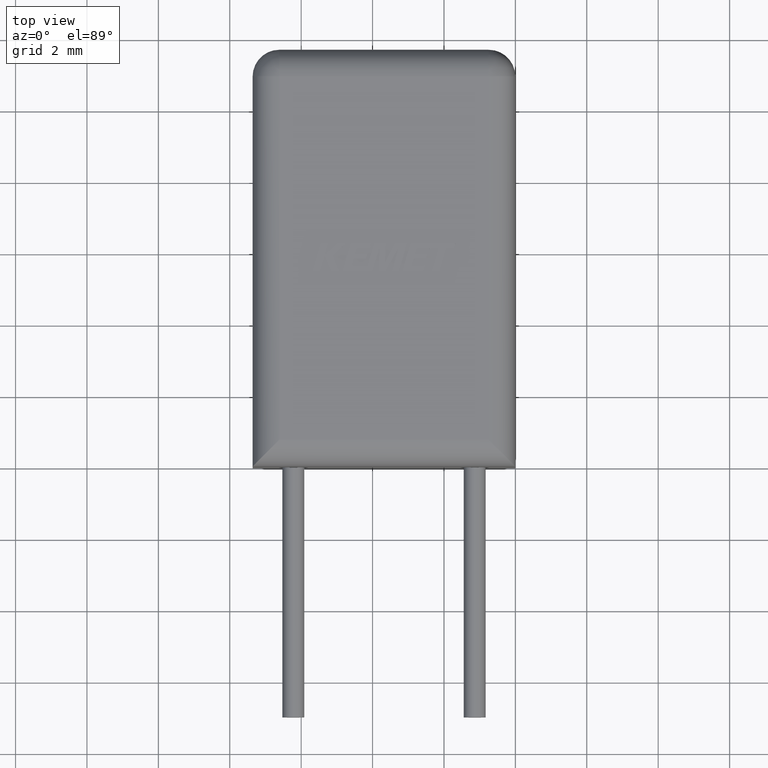
[diagram: clean part render]
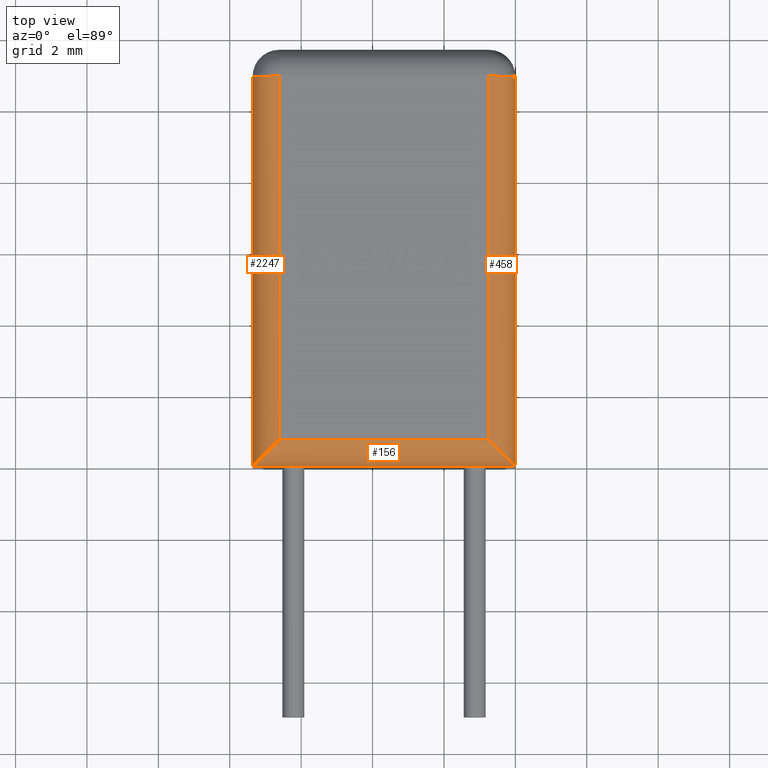
[diagram: same view with one multi-face feature highlighted, each face labeled with its STEP entity id]
A machine part, top view. The highlighted faces form ONE feature: a constant-radius fillet chain: 3 tangent blend faces with common blend radius 0.75 mm. The faces share edges in the B-rep.
Their STEP definitions:
[1] entity #156 (Cylinder):
#20 = EDGE_CURVE ( 'NONE', #2155, #1431, #1561, .T. ) ;
#66 = DIRECTION ( 'NONE',  ( -1.224646799147353200E-016, 1.000000000000000000, 0.0000000000000000000 ) ) ;
#101 = DIRECTION ( 'NONE',  ( 1.000000000000000000, 1.224646799147353200E-016, 0.0000000000000000000 ) ) ;
#132 = CARTESIAN_POINT ( 'NONE',  ( -6.610000000000000300, 0.7499999999999992200, 4.070000000000000300 ) ) ;
#156 = ADVANCED_FACE ( 'NONE', ( #924 ), #227, .T. ) ;
#171 = CARTESIAN_POINT ( 'NONE',  ( 0.0000000000000000000, 0.0000000000000000000, 3.320000000000000700 ) ) ;
#192 = CARTESIAN_POINT ( 'NONE',  ( -9.184850993605149700E-017, 0.7500000000000000000, 4.070000000000000300 ) ) ;
#227 = CYLINDRICAL_SURFACE ( 'NONE', #1814, 0.7500000000000000000 ) ;
#537 = EDGE_CURVE ( 'NONE', #1845, #1150, #1416, .T. ) ;
#840 = CARTESIAN_POINT ( 'NONE',  ( -7.049339828220179300, 0.3106601717798205800, 4.070000000000000300 ) ) ;
#924 = FACE_OUTER_BOUND ( 'NONE', #1584, .T. ) ;
#1079 = CARTESIAN_POINT ( 'NONE',  ( 5.380361143677898200E-017, -5.380361143677898200E-017, 3.759339828220179300 ) ) ;
#1150 = VERTEX_POINT ( 'NONE', #3003 ) ;
#1416 = LINE ( 'NONE', #192, #1641 ) ;
#1431 = VERTEX_POINT ( 'NONE', #2835 ) ;
#1544 = CARTESIAN_POINT ( 'NONE',  ( -9.184850993605149700E-017, 0.7500000000000000000, 3.320000000000000700 ) ) ;
#1561 = LINE ( 'NONE', #2631, #2936 ) ;
#1584 = EDGE_LOOP ( 'NONE', ( #2550, #2567, #3412, #2418 ) ) ;
#1594 = CARTESIAN_POINT ( 'NONE',  ( 0.0000000000000000000, 0.0000000000000000000, 3.320000000000000700 ) ) ;
#1609 = DIRECTION ( 'NONE',  ( 1.000000000000000000, 1.224646799147353200E-016, 0.0000000000000000000 ) ) ;
#1641 = VECTOR ( 'NONE', #1609, 1000.000000000000000 ) ;
#1814 = AXIS2_PLACEMENT_3D ( 'NONE', #1544, #101, #66 ) ;
#1845 = VERTEX_POINT ( 'NONE', #132 ) ;
#1944 = CARTESIAN_POINT ( 'NONE',  ( -6.610000000000000300, 0.7499999999999992200, 4.070000000000000300 ) ) ;
#2049 = DIRECTION ( 'NONE',  ( -1.000000000000000000, -1.224646799147353200E-016, -0.0000000000000000000 ) ) ;
#2155 = VERTEX_POINT ( 'NONE', #1594 ) ;
#2389 = EDGE_CURVE ( 'NONE', #1845, #1431, #3700, .T. ) ;
#2418 = ORIENTED_EDGE ( 'NONE', *, *, #537, .F. ) ;
#2550 = ORIENTED_EDGE ( 'NONE', *, *, #2389, .T. ) ;
#2567 = ORIENTED_EDGE ( 'NONE', *, *, #20, .F. ) ;
#2631 = CARTESIAN_POINT ( 'NONE',  ( 0.0000000000000000000, 0.0000000000000000000, 3.320000000000000700 ) ) ;
#2835 = CARTESIAN_POINT ( 'NONE',  ( -7.360000000000000300, -9.013400441724519400E-016, 3.320000000000000700 ) ) ;
#2936 = VECTOR ( 'NONE', #2049, 1000.000000000000000 ) ;
#3003 = CARTESIAN_POINT ( 'NONE',  ( -0.7500000000000000000, 0.7499999999999998900, 4.070000000000000300 ) ) ;
#3096 = CARTESIAN_POINT ( 'NONE',  ( -7.360000000000000300, -8.673617379884035500E-016, 3.759339828220179300 ) ) ;
#3104 = CARTESIAN_POINT ( 'NONE',  ( -7.360000000000000300, -9.013400441724519400E-016, 3.320000000000000700 ) ) ;
#3124 =( BOUNDED_CURVE ( )  B_SPLINE_CURVE ( 3, ( #171, #1079, #3698, #3396 ),
 .UNSPECIFIED., .F., .T. ) 
 B_SPLINE_CURVE_WITH_KNOTS ( ( 4, 4 ),
 ( 3.141592653589793100, 4.712388980384689700 ),
 .UNSPECIFIED. ) 
 CURVE ( )  GEOMETRIC_REPRESENTATION_ITEM ( )  RATIONAL_B_SPLINE_CURVE ( ( 1.000000000000000000, 0.8047378541243649400, 0.8047378541243649400, 1.000000000000000000 ) ) 
 REPRESENTATION_ITEM ( '' )  );
#3326 = EDGE_CURVE ( 'NONE', #2155, #1150, #3124, .T. ) ;
#3396 = CARTESIAN_POINT ( 'NONE',  ( -0.7500000000000000000, 0.7499999999999998900, 4.070000000000000300 ) ) ;
#3412 = ORIENTED_EDGE ( 'NONE', *, *, #3326, .T. ) ;
#3698 = CARTESIAN_POINT ( 'NONE',  ( -0.3106601717798211900, 0.3106601717798211400, 4.070000000000000300 ) ) ;
#3700 =( BOUNDED_CURVE ( )  B_SPLINE_CURVE ( 3, ( #1944, #840, #3096, #3104 ),
 .UNSPECIFIED., .F., .T. ) 
 B_SPLINE_CURVE_WITH_KNOTS ( ( 4, 4 ),
 ( 4.712388980384689700, 6.283185307179586200 ),
 .UNSPECIFIED. ) 
 CURVE ( )  GEOMETRIC_REPRESENTATION_ITEM ( )  RATIONAL_B_SPLINE_CURVE ( ( 1.000000000000000000, 0.8047378541243649400, 0.8047378541243649400, 1.000000000000000000 ) ) 
 REPRESENTATION_ITEM ( '' )  );
[2] entity #458 (Cylinder):
#31 = LINE ( 'NONE', #2805, #3536 ) ;
#129 = VERTEX_POINT ( 'NONE', #1558 ) ;
#145 = ORIENTED_EDGE ( 'NONE', *, *, #3326, .F. ) ;
#171 = CARTESIAN_POINT ( 'NONE',  ( 0.0000000000000000000, 0.0000000000000000000, 3.320000000000000700 ) ) ;
#449 = LINE ( 'NONE', #2597, #3184 ) ;
#458 = ADVANCED_FACE ( 'NONE', ( #3148 ), #2225, .T. ) ;
#587 = CARTESIAN_POINT ( 'NONE',  ( -0.7500000000000000000, 10.92999999999999600, 3.320000000000000700 ) ) ;
#687 = CARTESIAN_POINT ( 'NONE',  ( 0.0000000000000000000, 10.92999999999999600, 3.320000000000000700 ) ) ;
#1079 = CARTESIAN_POINT ( 'NONE',  ( 5.380361143677898200E-017, -5.380361143677898200E-017, 3.759339828220179300 ) ) ;
#1150 = VERTEX_POINT ( 'NONE', #3003 ) ;
#1295 = DIRECTION ( 'NONE',  ( 0.0000000000000000000, 1.000000000000000000, 0.0000000000000000000 ) ) ;
#1464 = DIRECTION ( 'NONE',  ( -0.0000000000000000000, -1.000000000000000000, -0.0000000000000000000 ) ) ;
#1516 = AXIS2_PLACEMENT_3D ( 'NONE', #587, #2318, #1741 ) ;
#1558 = CARTESIAN_POINT ( 'NONE',  ( -0.7500000000000000000, 10.92999999999999600, 4.070000000000000300 ) ) ;
#1566 = DIRECTION ( 'NONE',  ( 0.0000000000000000000, 0.0000000000000000000, 1.000000000000000000 ) ) ;
#1594 = CARTESIAN_POINT ( 'NONE',  ( 0.0000000000000000000, 0.0000000000000000000, 3.320000000000000700 ) ) ;
#1741 = DIRECTION ( 'NONE',  ( 0.0000000000000000000, 0.0000000000000000000, 1.000000000000000000 ) ) ;
#2155 = VERTEX_POINT ( 'NONE', #1594 ) ;
#2225 = CYLINDRICAL_SURFACE ( 'NONE', #2803, 0.7499999999999997800 ) ;
#2250 = ORIENTED_EDGE ( 'NONE', *, *, #2481, .F. ) ;
#2267 = EDGE_LOOP ( 'NONE', ( #3176, #3320, #145, #2250 ) ) ;
#2311 = CIRCLE ( 'NONE', #1516, 0.7499999999999997800 ) ;
#2318 = DIRECTION ( 'NONE',  ( -0.0000000000000000000, -1.000000000000000000, -0.0000000000000000000 ) ) ;
#2357 = EDGE_CURVE ( 'NONE', #1150, #129, #31, .T. ) ;
#2438 = EDGE_CURVE ( 'NONE', #3132, #129, #2311, .T. ) ;
#2462 = CARTESIAN_POINT ( 'NONE',  ( -0.7500000000000000000, 0.0000000000000000000, 3.320000000000000700 ) ) ;
#2481 = EDGE_CURVE ( 'NONE', #3132, #2155, #449, .T. ) ;
#2597 = CARTESIAN_POINT ( 'NONE',  ( 0.0000000000000000000, 11.67999999999999800, 3.320000000000000700 ) ) ;
#2803 = AXIS2_PLACEMENT_3D ( 'NONE', #2462, #1295, #1566 ) ;
#2805 = CARTESIAN_POINT ( 'NONE',  ( -0.7500000000000000000, 0.0000000000000000000, 4.070000000000000300 ) ) ;
#3003 = CARTESIAN_POINT ( 'NONE',  ( -0.7500000000000000000, 0.7499999999999998900, 4.070000000000000300 ) ) ;
#3124 =( BOUNDED_CURVE ( )  B_SPLINE_CURVE ( 3, ( #171, #1079, #3698, #3396 ),
 .UNSPECIFIED., .F., .T. ) 
 B_SPLINE_CURVE_WITH_KNOTS ( ( 4, 4 ),
 ( 3.141592653589793100, 4.712388980384689700 ),
 .UNSPECIFIED. ) 
 CURVE ( )  GEOMETRIC_REPRESENTATION_ITEM ( )  RATIONAL_B_SPLINE_CURVE ( ( 1.000000000000000000, 0.8047378541243649400, 0.8047378541243649400, 1.000000000000000000 ) ) 
 REPRESENTATION_ITEM ( '' )  );
#3132 = VERTEX_POINT ( 'NONE', #687 ) ;
#3148 = FACE_OUTER_BOUND ( 'NONE', #2267, .T. ) ;
#3176 = ORIENTED_EDGE ( 'NONE', *, *, #2438, .T. ) ;
#3184 = VECTOR ( 'NONE', #1464, 1000.000000000000000 ) ;
#3320 = ORIENTED_EDGE ( 'NONE', *, *, #2357, .F. ) ;
#3326 = EDGE_CURVE ( 'NONE', #2155, #1150, #3124, .T. ) ;
#3392 = DIRECTION ( 'NONE',  ( 0.0000000000000000000, 1.000000000000000000, 0.0000000000000000000 ) ) ;
#3396 = CARTESIAN_POINT ( 'NONE',  ( -0.7500000000000000000, 0.7499999999999998900, 4.070000000000000300 ) ) ;
#3536 = VECTOR ( 'NONE', #3392, 1000.000000000000000 ) ;
#3698 = CARTESIAN_POINT ( 'NONE',  ( -0.3106601717798211900, 0.3106601717798211400, 4.070000000000000300 ) ) ;
[3] entity #2247 (Cylinder):
#10 = CARTESIAN_POINT ( 'NONE',  ( -6.610000000000000300, 10.92999999999999600, 3.320000000000000700 ) ) ;
#132 = CARTESIAN_POINT ( 'NONE',  ( -6.610000000000000300, 0.7499999999999992200, 4.070000000000000300 ) ) ;
#183 = EDGE_LOOP ( 'NONE', ( #3315, #265, #1998, #1043 ) ) ;
#262 = AXIS2_PLACEMENT_3D ( 'NONE', #2206, #497, #473 ) ;
#265 = ORIENTED_EDGE ( 'NONE', *, *, #1591, .F. ) ;
#334 = VECTOR ( 'NONE', #2895, 1000.000000000000000 ) ;
#435 = VERTEX_POINT ( 'NONE', #3289 ) ;
#473 = DIRECTION ( 'NONE',  ( 0.0000000000000000000, 0.0000000000000000000, -1.000000000000000000 ) ) ;
#497 = DIRECTION ( 'NONE',  ( 0.0000000000000000000, -1.000000000000000000, 0.0000000000000000000 ) ) ;
#840 = CARTESIAN_POINT ( 'NONE',  ( -7.049339828220179300, 0.3106601717798205800, 4.070000000000000300 ) ) ;
#1043 = ORIENTED_EDGE ( 'NONE', *, *, #1279, .F. ) ;
#1056 = CYLINDRICAL_SURFACE ( 'NONE', #262, 0.7499999999999997800 ) ;
#1279 = EDGE_CURVE ( 'NONE', #3051, #1845, #1624, .T. ) ;
#1431 = VERTEX_POINT ( 'NONE', #2835 ) ;
#1500 = CARTESIAN_POINT ( 'NONE',  ( -7.360000000000000300, -9.013400441724519400E-016, 3.320000000000000700 ) ) ;
#1591 = EDGE_CURVE ( 'NONE', #1431, #435, #3160, .T. ) ;
#1624 = LINE ( 'NONE', #3161, #334 ) ;
#1684 = CIRCLE ( 'NONE', #2834, 0.7499999999999997800 ) ;
#1754 = CARTESIAN_POINT ( 'NONE',  ( -6.610000000000000300, 10.92999999999999600, 4.070000000000000300 ) ) ;
#1800 = DIRECTION ( 'NONE',  ( 0.0000000000000000000, 0.0000000000000000000, 1.000000000000000000 ) ) ;
#1845 = VERTEX_POINT ( 'NONE', #132 ) ;
#1944 = CARTESIAN_POINT ( 'NONE',  ( -6.610000000000000300, 0.7499999999999992200, 4.070000000000000300 ) ) ;
#1998 = ORIENTED_EDGE ( 'NONE', *, *, #2389, .F. ) ;
#2029 = EDGE_CURVE ( 'NONE', #3051, #435, #1684, .T. ) ;
#2047 = DIRECTION ( 'NONE',  ( -0.0000000000000000000, -1.000000000000000000, 0.0000000000000000000 ) ) ;
#2206 = CARTESIAN_POINT ( 'NONE',  ( -6.610000000000000300, 0.0000000000000000000, 3.320000000000000700 ) ) ;
#2247 = ADVANCED_FACE ( 'NONE', ( #3669 ), #1056, .T. ) ;
#2389 = EDGE_CURVE ( 'NONE', #1845, #1431, #3700, .T. ) ;
#2424 = VECTOR ( 'NONE', #3208, 1000.000000000000000 ) ;
#2834 = AXIS2_PLACEMENT_3D ( 'NONE', #10, #2047, #1800 ) ;
#2835 = CARTESIAN_POINT ( 'NONE',  ( -7.360000000000000300, -9.013400441724519400E-016, 3.320000000000000700 ) ) ;
#2895 = DIRECTION ( 'NONE',  ( 0.0000000000000000000, -1.000000000000000000, 0.0000000000000000000 ) ) ;
#3051 = VERTEX_POINT ( 'NONE', #1754 ) ;
#3096 = CARTESIAN_POINT ( 'NONE',  ( -7.360000000000000300, -8.673617379884035500E-016, 3.759339828220179300 ) ) ;
#3104 = CARTESIAN_POINT ( 'NONE',  ( -7.360000000000000300, -9.013400441724519400E-016, 3.320000000000000700 ) ) ;
#3160 = LINE ( 'NONE', #1500, #2424 ) ;
#3161 = CARTESIAN_POINT ( 'NONE',  ( -6.610000000000000300, 0.0000000000000000000, 4.070000000000000300 ) ) ;
#3208 = DIRECTION ( 'NONE',  ( -0.0000000000000000000, 1.000000000000000000, -0.0000000000000000000 ) ) ;
#3289 = CARTESIAN_POINT ( 'NONE',  ( -7.360000000000000300, 10.92999999999999600, 3.320000000000000700 ) ) ;
#3315 = ORIENTED_EDGE ( 'NONE', *, *, #2029, .T. ) ;
#3669 = FACE_OUTER_BOUND ( 'NONE', #183, .T. ) ;
#3700 =( BOUNDED_CURVE ( )  B_SPLINE_CURVE ( 3, ( #1944, #840, #3096, #3104 ),
 .UNSPECIFIED., .F., .T. ) 
 B_SPLINE_CURVE_WITH_KNOTS ( ( 4, 4 ),
 ( 4.712388980384689700, 6.283185307179586200 ),
 .UNSPECIFIED. ) 
 CURVE ( )  GEOMETRIC_REPRESENTATION_ITEM ( )  RATIONAL_B_SPLINE_CURVE ( ( 1.000000000000000000, 0.8047378541243649400, 0.8047378541243649400, 1.000000000000000000 ) ) 
 REPRESENTATION_ITEM ( '' )  );